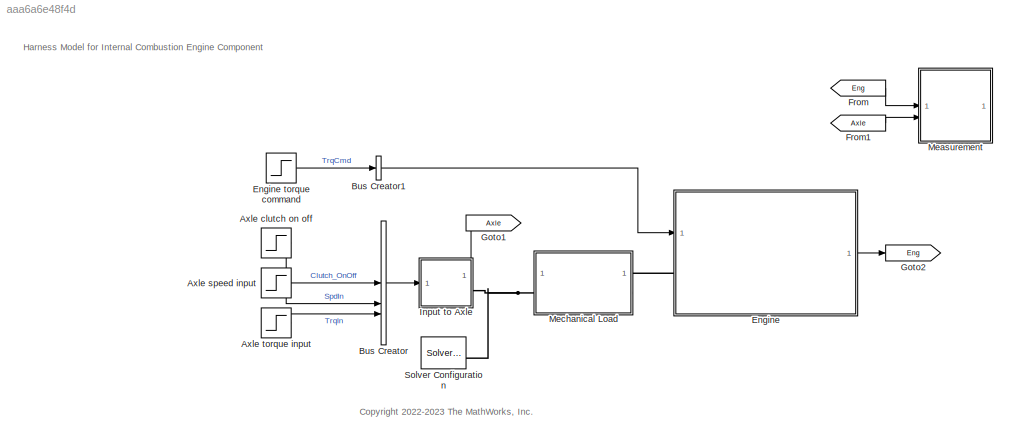
MODEL mdl_aaa6a6e48f4d
KIND model
CONFIG AbsTol = 1e-3
CONFIG EnableMultiTasking = off
CONFIG FixedStep = auto
CONFIG MaxStep = auto
CONFIG MinStep = auto
CONFIG PreLoadFcn = Engine_Component_harness_setup\n
CONFIG RelTol = 1e-3
CONFIG SampleTimeConstraint = Unconstrained
CONFIG SolverName = daessc
CONFIG StartTime = 0.0
CONFIG StopTime = 30
BLOCK [Step] Axle clutch on off
  After = 0
  NameLocation = left
  SampleTime = 0
BLOCK [Step] Axle speed input
  After = 0
  NameLocation = left
  SampleTime = 0
BLOCK [Step] Axle torque input
  After = 20
  NameLocation = left
  SampleTime = 0
  Time = 20
BLOCK [BusCreator] Bus Creator
  DisplayOption = bar
  InheritFromInputs = on
  Inputs = 3
BLOCK [BusCreator] Bus Creator1
  DisplayOption = bar
  InheritFromInputs = on
  Inputs = 1
BLOCK [SubSystem] Engine
  ReferencedSubsystem = Engine_refsub_Basic
BLOCK [Step] Engine torque command
  After = 100
  Before = 40
  NameLocation = left
  SampleTime = 0
  Time = 10
BLOCK [From] From
  GotoTag = Eng
  NameLocation = left
BLOCK [From] From1
  GotoTag = Axle
  NameLocation = left
BLOCK [Goto] Goto1
  GotoTag = Axle
BLOCK [Goto] Goto2
  GotoTag = Eng
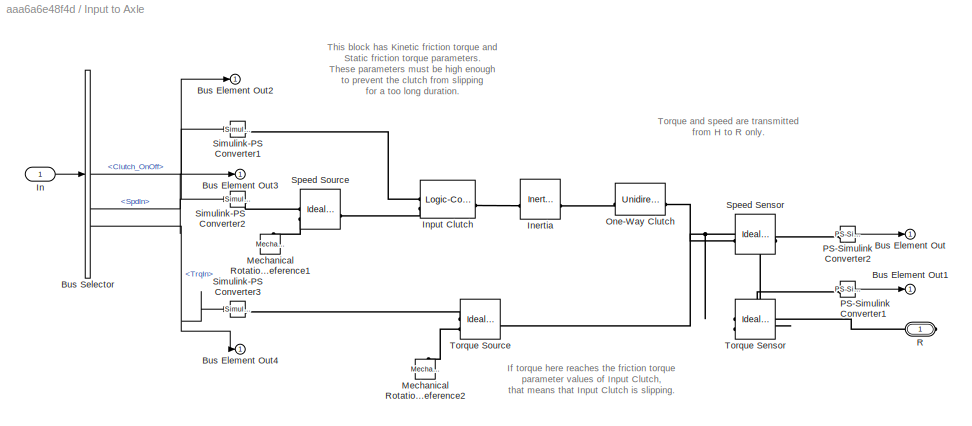
BLOCK [SubSystem] Input to Axle
  PortSchema = {"entries":[{"content":{"sides":[{"content":{"connectorIds":["In1"]},"type":"ConnectorPlacement.EquallySpacedRectSide","uuid":"17ecda4f-ad99-4587-a38d-a324d7486455"},{"content":{"connectorIds":["RConn1"],"side":"RIGHT"},"type":"ConnectorPlacement.EquallySpacedRectSide","uuid":"02def29b-e53d-45c2-af98-8005350a1631"},{"content":{"connectorIds":["Out1"],"side":"TOP"},"type":"ConnectorPlacement.Equall...<+248ch>
BLOCK [Outport] Input to Axle/Bus Element Out
BLOCK [Outport] Input to Axle/Bus Element Out1
BLOCK [Outport] Input to Axle/Bus Element Out2
BLOCK [Outport] Input to Axle/Bus Element Out3
BLOCK [Outport] Input to Axle/Bus Element Out4
BLOCK [BusSelector] Input to Axle/Bus Selector
  OutputSignals = Clutch_OnOff,SpdIn,TrqIn
BLOCK [Inport] Input to Axle/In
  AttributesFormatString = %<Unit>
BLOCK [Reference] Input to Axle/Inertia  REF=fl_lib/Mechanical/Rotational Elements/Inertia
  SourceBlock = fl_lib/Mechanical/Rotational Elements/Inertia
  SourceType = Inertia
BLOCK [Reference] Input to Axle/Input Clutch  REF=sdl_lib/Clutches/Logic-Controlled
Clutch
  AttributesFormatString = %<initial_state_locked>
  SourceBlock = sdl_lib/Clutches/Logic-Controlled\nClutch
  SourceType = Logic-Controlled\nClutch
BLOCK [Reference] Input to Axle/Mechanical Rotational Reference1  REF=fl_lib/Mechanical/Rotational Elements/Mechanical
Rotational Reference
  SourceBlock = fl_lib/Mechanical/Rotational Elements/Mechanical\nRotational Reference
  SourceType = Mechanical\nRotational Reference
BLOCK [Reference] Input to Axle/Mechanical Rotational Reference2  REF=fl_lib/Mechanical/Rotational Elements/Mechanical
Rotational Reference
  NameLocation = right
  SourceBlock = fl_lib/Mechanical/Rotational Elements/Mechanical\nRotational Reference
  SourceType = Mechanical\nRotational Reference
BLOCK [Reference] Input to Axle/One-Way Clutch  REF=sdl_lib/Clutches/Unidirectional
Clutch
  SourceBlock = sdl_lib/Clutches/Unidirectional\nClutch
  SourceType = Unidirectional\nClutch
BLOCK [Reference] Input to Axle/PS-Simulink Converter1  REF=nesl_utility/PS-Simulink
Converter
  AttributesFormatString = %<Unit>
  SourceBlock = nesl_utility/PS-Simulink\nConverter
  SourceType = PS-Simulink\nConverter
BLOCK [Reference] Input to Axle/PS-Simulink Converter2  REF=nesl_utility/PS-Simulink
Converter
  AttributesFormatString = %<Unit>
  NameLocation = top
  SourceBlock = nesl_utility/PS-Simulink\nConverter
  SourceType = PS-Simulink\nConverter
BLOCK [PMIOPort] Input to Axle/R
  Side = Right
BLOCK [Reference] Input to Axle/Simulink-PS Converter1  REF=nesl_utility/Simulink-PS
Converter
  AttributesFormatString = %<Unit>
  SourceBlock = nesl_utility/Simulink-PS\nConverter
  SourceType = Simulink-PS\nConverter
BLOCK [Reference] Input to Axle/Simulink-PS Converter2  REF=nesl_utility/Simulink-PS
Converter
  AttributesFormatString = %<Unit>
  SourceBlock = nesl_utility/Simulink-PS\nConverter
  SourceType = Simulink-PS\nConverter
BLOCK [Reference] Input to Axle/Simulink-PS Converter3  REF=nesl_utility/Simulink-PS
Converter
  AttributesFormatString = %<Unit>
  SourceBlock = nesl_utility/Simulink-PS\nConverter
  SourceType = Simulink-PS\nConverter
BLOCK [Reference] Input to Axle/Speed Sensor  REF=fl_lib/Mechanical/Mechanical Sensors/Ideal Rotational
Motion Sensor
  NameLocation = top
  SourceBlock = fl_lib/Mechanical/Mechanical Sensors/Ideal Rotational\nMotion Sensor
  SourceType = Ideal Rotational\nMotion Sensor
BLOCK [Reference] Input to Axle/Speed Source  REF=fl_lib/Mechanical/Mechanical Sources/Ideal Angular
Velocity Source
  SourceBlock = fl_lib/Mechanical/Mechanical Sources/Ideal Angular\nVelocity Source
  SourceType = Ideal Angular\nVelocity Source
BLOCK [Reference] Input to Axle/Torque Sensor  REF=fl_lib/Mechanical/Mechanical Sensors/Ideal Torque Sensor
  NameLocation = top
  SourceBlock = fl_lib/Mechanical/Mechanical Sensors/Ideal Torque Sensor
  SourceType = Ideal Torque Sensor
BLOCK [Reference] Input to Axle/Torque Source  REF=fl_lib/Mechanical/Mechanical Sources/Ideal Torque Source
  SourceBlock = fl_lib/Mechanical/Mechanical Sources/Ideal Torque Source
  SourceType = Ideal Torque Source
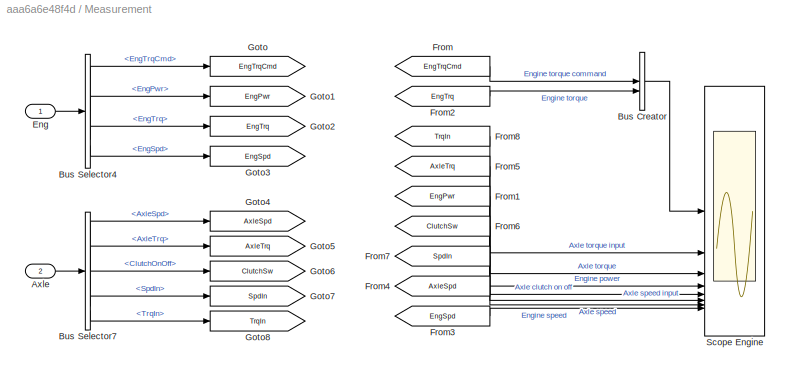
BLOCK [SubSystem] Measurement
BLOCK [Inport] Measurement/Axle
  Port = 2
BLOCK [BusCreator] Measurement/Bus Creator
  DisplayOption = bar
  InheritFromInputs = on
  Inputs = 2
BLOCK [BusSelector] Measurement/Bus Selector4
  OutputSignals = EngTrqCmd,EngPwr,EngTrq,EngSpd
BLOCK [BusSelector] Measurement/Bus Selector7
  OutputSignals = AxleSpd,AxleTrq,ClutchOnOff,SpdIn,TrqIn
BLOCK [Inport] Measurement/Eng
BLOCK [From] Measurement/From
  GotoTag = EngTrqCmd
  NameLocation = left
BLOCK [From] Measurement/From1
  GotoTag = EngPwr
  NameLocation = left
BLOCK [From] Measurement/From2
  GotoTag = EngTrq
  NameLocation = left
BLOCK [From] Measurement/From3
  GotoTag = EngSpd
  NameLocation = left
BLOCK [From] Measurement/From4
  GotoTag = AxleSpd
  NameLocation = left
BLOCK [From] Measurement/From5
  GotoTag = AxleTrq
  NameLocation = left
BLOCK [From] Measurement/From6
  GotoTag = ClutchSw
BLOCK [From] Measurement/From7
  GotoTag = SpdIn
BLOCK [From] Measurement/From8
  GotoTag = TrqIn
BLOCK [Goto] Measurement/Goto
  GotoTag = EngTrqCmd
  NameLocation = right
BLOCK [Goto] Measurement/Goto1
  GotoTag = EngPwr
  NameLocation = right
BLOCK [Goto] Measurement/Goto2
  GotoTag = EngTrq
  NameLocation = right
BLOCK [Goto] Measurement/Goto3
  GotoTag = EngSpd
  NameLocation = right
BLOCK [Goto] Measurement/Goto4
  GotoTag = AxleSpd
  NameLocation = right
BLOCK [Goto] Measurement/Goto5
  GotoTag = AxleTrq
  NameLocation = right
BLOCK [Goto] Measurement/Goto6
  GotoTag = ClutchSw
  NameLocation = right
BLOCK [Goto] Measurement/Goto7
  GotoTag = SpdIn
  NameLocation = right
BLOCK [Goto] Measurement/Goto8
  GotoTag = TrqIn
  NameLocation = right
BLOCK [Scope] Measurement/Scope Engine
  Floating = off
  NumInputPorts = 8
  ScopeSpecificationString = Simulink.scopes.TimeScopeBlockCfg('CurrentConfiguration', extmgr.ConfigurationSet(extmgr.Configuration('Core','General UI',true),extmgr.Configuration('Core','Source UI',true),extmgr.Configuration('Sources','WiredSimulink',true),extmgr.Configuration('Visuals','Time Domain',true,'SerializedDisplays',{struct('MinYLimReal','-28.57143','MaxYLimReal','114.28571','YLabelReal','','MinYLimMag','0.00000','M...<+6344ch>
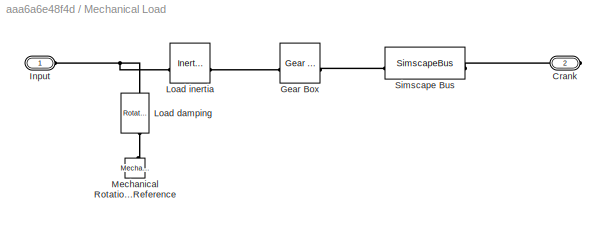
BLOCK [SubSystem] Mechanical Load
BLOCK [PMIOPort] Mechanical Load/Crank
  Port = 2
  Side = Right
BLOCK [Reference] Mechanical Load/Gear Box  REF=fl_lib/Mechanical/Mechanisms/Gear Box
  AttributesFormatString = Gear ratio: %<ratio>
  SourceBlock = fl_lib/Mechanical/Mechanisms/Gear Box
  SourceType = Gear Box
BLOCK [PMIOPort] Mechanical Load/Input
  Side = Left
BLOCK [Reference] Mechanical Load/Load damping  REF=fl_lib/Mechanical/Rotational Elements/Rotational Damper
  AttributesFormatString = %<D> %<D_unit>
  NameLocation = left
  SourceBlock = fl_lib/Mechanical/Rotational Elements/Rotational Damper
  SourceType = Rotational Damper
BLOCK [Reference] Mechanical Load/Load inertia  REF=fl_lib/Mechanical/Rotational Elements/Inertia
  AttributesFormatString = %<w> [%<w_unit>]\nPriority: %<w_priority>\n%<inertia> %<inertia_unit>
  NameLocation = top
  SourceBlock = fl_lib/Mechanical/Rotational Elements/Inertia
  SourceType = Inertia
BLOCK [Reference] Mechanical Load/Mechanical Rotational Reference  REF=fl_lib/Mechanical/Rotational Elements/Mechanical
Rotational Reference
  NameLocation = right
  SourceBlock = fl_lib/Mechanical/Rotational Elements/Mechanical\nRotational Reference
  SourceType = Mechanical\nRotational Reference
BLOCK [SimscapeBus] Mechanical Load/Simscape Bus
  AttributesFormatString = %<ConnectionType>
  ConnectionType = Bus: Bus_Rotational
  HierarchyStrings = AngSpd
  NameLocation = top
BLOCK [Reference] Solver Configuration  REF=nesl_utility/Solver
Configuration
  AttributesFormatString = Local solver: %<UseLocalSolver>
  SourceBlock = nesl_utility/Solver\nConfiguration
  SourceType = Solver\nConfiguration
ANNOTATION (root): <copyright redacted>
ANNOTATION (root): Harness Model for Internal Combustion Engine Component
ANNOTATION Input to Axle: If torque here reaches the friction torque parameter values of Input Clutch, that means that Input Clutch is slipping.
ANNOTATION Input to Axle: This block has Kinetic friction torque and Static friction torque parameters. These parameters must be high enough to prevent the clutch from slipping for a too long duration.
ANNOTATION Input to Axle: Torque and speed are transmitted from H to R only.
LINE Axle clutch on off:1 -> Bus Creator:1
LINE Axle speed input:1 -> Bus Creator:2
LINE Axle torque input:1 -> Bus Creator:3
LINE Bus Creator1:1 -> Engine:1
LINE Bus Creator:1 -> Input to Axle:1
LINE Engine torque command:1 -> Bus Creator1:1
LINE Engine:1 -> Goto2:1
LINE From1:1 -> Measurement:2
LINE From:1 -> Measurement:1
NET Input to Axle/Bus Selector:1 -> Input to Axle/Bus Element Out2:1, Input to Axle/Simulink-PS Converter1:1
NET Input to Axle/Bus Selector:2 -> Input to Axle/Bus Element Out3:1, Input to Axle/Simulink-PS Converter2:1
NET Input to Axle/Bus Selector:3 -> Input to Axle/Bus Element Out4:1, Input to Axle/Simulink-PS Converter3:1
LINE Input to Axle/In:1 -> Input to Axle/Bus Selector:1
LINE Input to Axle/PS-Simulink Converter1:1 -> Input to Axle/Bus Element Out1:1
LINE Input to Axle/PS-Simulink Converter2:1 -> Input to Axle/Bus Element Out:1
LINE Input to Axle:1 -> Goto1:1
LINE Measurement/Axle:1 -> Measurement/Bus Selector7:1
LINE Measurement/Bus Creator:1 -> Measurement/Scope Engine:1
LINE Measurement/Bus Selector4:1 -> Measurement/Goto:1
LINE Measurement/Bus Selector4:2 -> Measurement/Goto1:1
LINE Measurement/Bus Selector4:3 -> Measurement/Goto2:1
LINE Measurement/Bus Selector4:4 -> Measurement/Goto3:1
LINE Measurement/Bus Selector7:1 -> Measurement/Goto4:1
LINE Measurement/Bus Selector7:2 -> Measurement/Goto5:1
LINE Measurement/Bus Selector7:3 -> Measurement/Goto6:1
LINE Measurement/Bus Selector7:4 -> Measurement/Goto7:1
LINE Measurement/Bus Selector7:5 -> Measurement/Goto8:1
LINE Measurement/Eng:1 -> Measurement/Bus Selector4:1
LINE Measurement/From1:1 -> Measurement/Scope Engine:4
LINE Measurement/From2:1 -> Measurement/Bus Creator:2
LINE Measurement/From3:1 -> Measurement/Scope Engine:8
LINE Measurement/From4:1 -> Measurement/Scope Engine:7
LINE Measurement/From5:1 -> Measurement/Scope Engine:3
LINE Measurement/From6:1 -> Measurement/Scope Engine:5
LINE Measurement/From7:1 -> Measurement/Scope Engine:6
LINE Measurement/From8:1 -> Measurement/Scope Engine:2
LINE Measurement/From:1 -> Measurement/Bus Creator:1
PLINE Engine:LConn1 -- Mechanical Load:RConn1
PLINE Input to Axle/Inertia:LConn1 -- Input to Axle/Input Clutch:RConn1
PLINE Input to Axle/Inertia:RConn1 -- Input to Axle/One-Way Clutch:LConn1
PLINE Input to Axle/Input Clutch:LConn1 -- Input to Axle/Simulink-PS Converter1:RConn1
PLINE Input to Axle/Input Clutch:LConn2 -- Input to Axle/Speed Source:LConn1
PLINE Input to Axle/Mechanical Rotational Reference1:LConn1 -- Input to Axle/Speed Source:RConn2
PLINE Input to Axle/Mechanical Rotational Reference2:LConn1 -- Input to Axle/Torque Source:RConn2
PNET net1: Input to Axle/One-Way Clutch:RConn1 -- Input to Axle/Speed Sensor:LConn1 -- Input to Axle/Torque Sensor:LConn1 -- Input to Axle/Torque Source:LConn1
PLINE Input to Axle/PS-Simulink Converter1:LConn1 -- Input to Axle/Torque Sensor:RConn2
PLINE Input to Axle/PS-Simulink Converter2:LConn1 -- Input to Axle/Speed Sensor:RConn1
PLINE Input to Axle/R:RConn1 -- Input to Axle/Torque Sensor:RConn1
PLINE Input to Axle/Simulink-PS Converter2:RConn1 -- Input to Axle/Speed Source:RConn1
PLINE Input to Axle/Simulink-PS Converter3:RConn1 -- Input to Axle/Torque Source:RConn1
PNET net2: Input to Axle:RConn1 -- Mechanical Load:LConn1 -- Solver Configuration:RConn1
PLINE Mechanical Load/Crank:RConn1 -- Mechanical Load/Simscape Bus:RConn1
PLINE Mechanical Load/Gear Box:LConn1 -- Mechanical Load/Simscape Bus:LConn1
PLINE Mechanical Load/Gear Box:RConn1 -- Mechanical Load/Load inertia:LConn1
PNET net3: Mechanical Load/Input:RConn1 -- Mechanical Load/Load damping:LConn1 -- Mechanical Load/Load inertia:RConn1
PLINE Mechanical Load/Load damping:RConn1 -- Mechanical Load/Mechanical Rotational Reference:LConn1
note: NET lines group one-source signal fan-out (src -> all destinations, sorted); 1:1 wires keep LINE; PNET lines group multi-terminal physical nets as a canonical sorted terminal list (undirected conserving connections); 2-terminal nets keep the pairwise PLINE form
